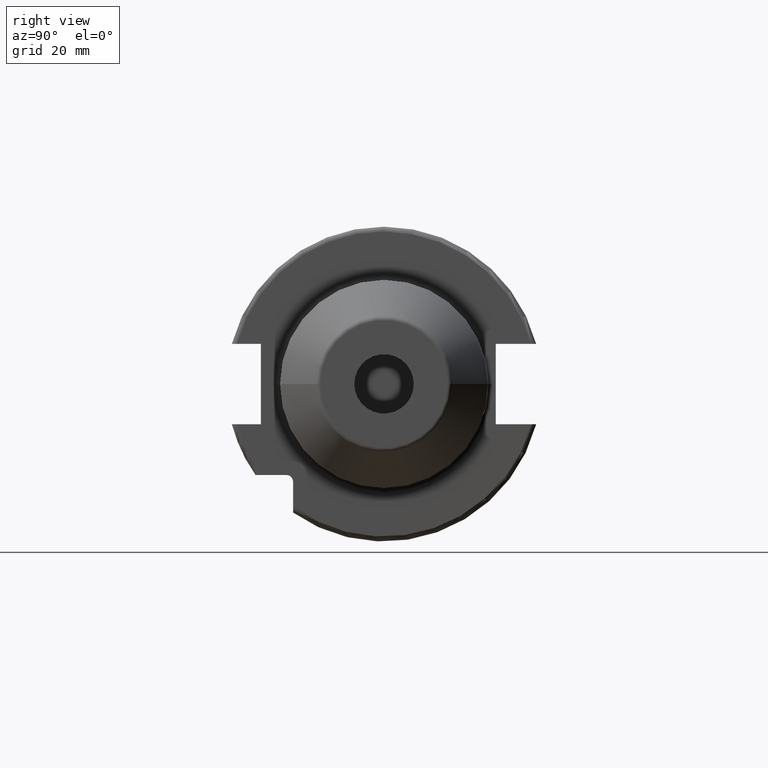
[diagram: clean part render]
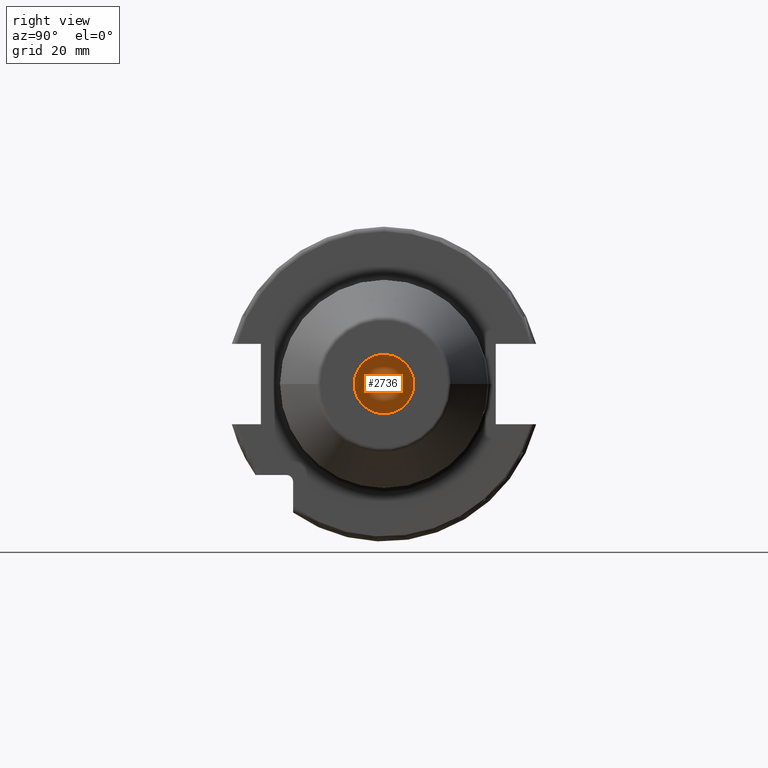
[diagram: same view with one face highlighted and labeled with its STEP entity id]
A machine part, right view. The second image highlights one B-rep face of the part: STEP entity #2736.
In plain terms, the highlighted planar face has unit normal (1, 0, 0).
Its self-contained STEP definition (entity closure, byte-faithful):
#1118=CARTESIAN_POINT('',(1.5E1,0.E0,0.E0));
#1119=DIRECTION('',(-1.E0,0.E0,0.E0));
#1120=DIRECTION('',(0.E0,1.E0,0.E0));
#1121=AXIS2_PLACEMENT_3D('',#1118,#1119,#1120);
#1123=CARTESIAN_POINT('',(1.5E1,0.E0,0.E0));
#1124=DIRECTION('',(1.E0,0.E0,0.E0));
#1125=DIRECTION('',(0.E0,1.E0,0.E0));
#1126=AXIS2_PLACEMENT_3D('',#1123,#1124,#1125);
#1553=CARTESIAN_POINT('',(1.5E1,6.E0,0.E0));
#1554=CARTESIAN_POINT('',(1.5E1,-6.E0,0.E0));
#1555=VERTEX_POINT('',#1553);
#1556=VERTEX_POINT('',#1554);
#2727=CARTESIAN_POINT('',(1.5E1,0.E0,0.E0));
#2728=DIRECTION('',(1.E0,0.E0,0.E0));
#2729=DIRECTION('',(0.E0,-1.E0,0.E0));
#2730=AXIS2_PLACEMENT_3D('',#2727,#2728,#2729);
#2731=PLANE('',#2730);
#2732=ORIENTED_EDGE('',*,*,#2721,.T.);
#2733=ORIENTED_EDGE('',*,*,#2702,.F.);
#2734=EDGE_LOOP('',(#2732,#2733));
#2735=FACE_OUTER_BOUND('',#2734,.F.);
#2736=ADVANCED_FACE('',(#2735),#2731,.T.);
#1122=CIRCLE('',#1121,6.E0);
#1127=CIRCLE('',#1126,6.E0);
#2702=EDGE_CURVE('',#1555,#1556,#1127,.T.);
#2721=EDGE_CURVE('',#1555,#1556,#1122,.T.);